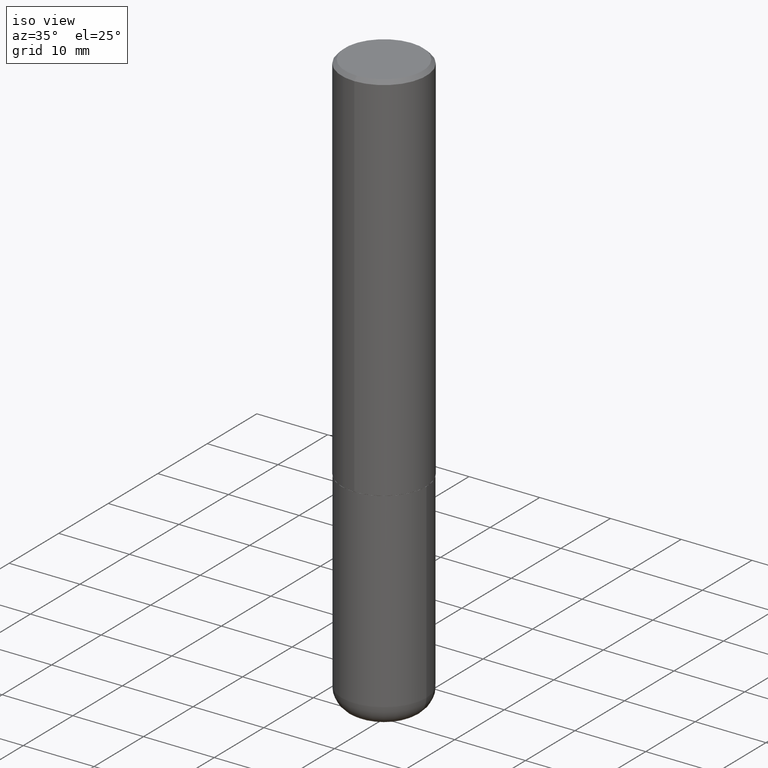
[diagram: clean part render]
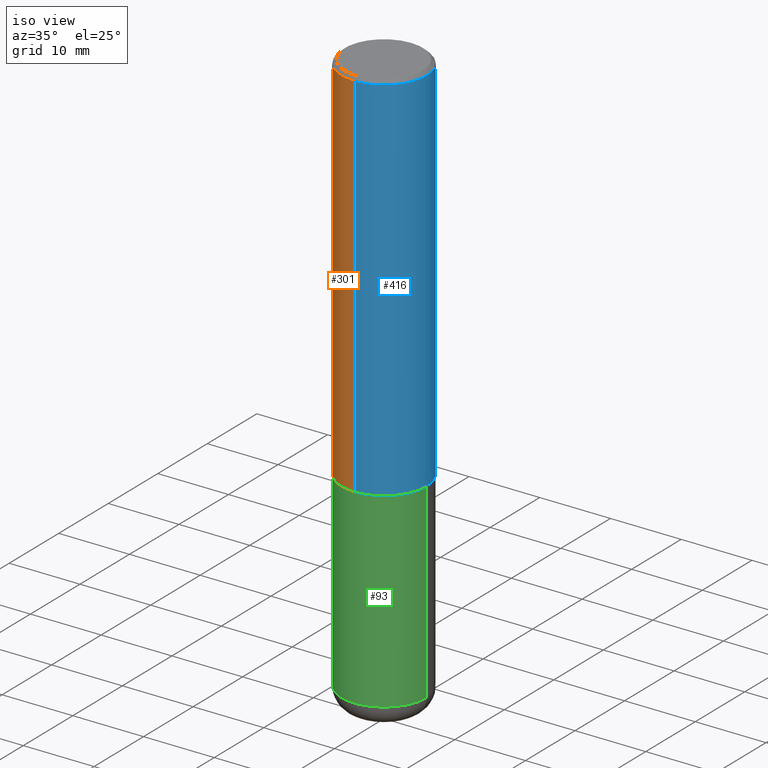
[diagram: same view with three faces highlighted in distinct colors, each labeled with its STEP entity id]
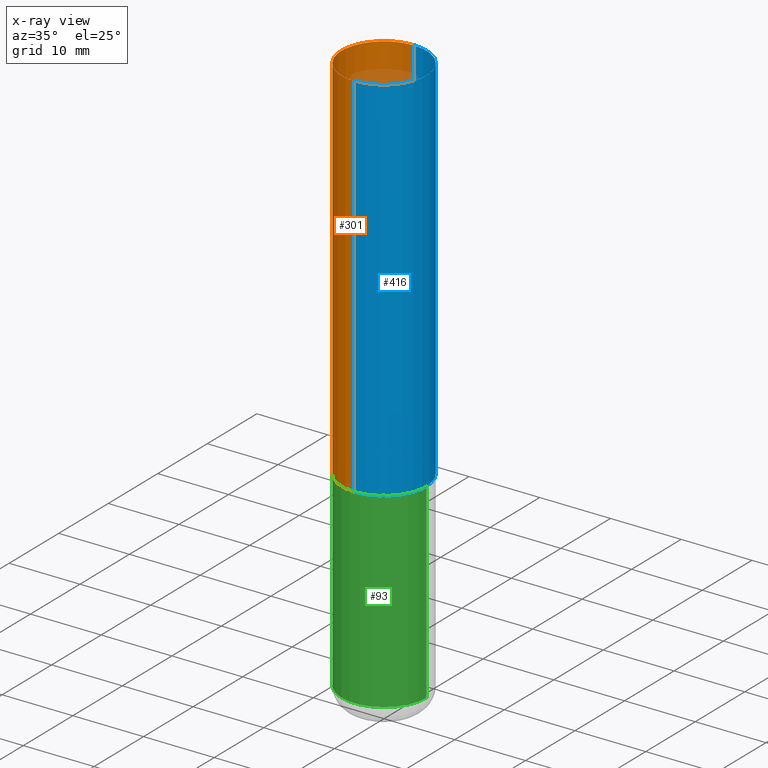
[diagram: x-ray of the same camera — body ghosted, the three highlighted faces saturated]
A machine part, iso view with three faces highlighted in distinct colors.
The next image is the same camera in x-ray (body ghosted, the three faces saturated) — at least one of them is partly hidden behind the body in this view.
Their STEP definitions:

[orange] entity #301 — the highlighted cylindrical surface (partial cylindrical patch) has radius 5.9995 mm, axis along (-0, 0, 1).
#1 = AXIS2_PLACEMENT_3D ( 'NONE', #161, #235, #263 ) ;
#27 = ORIENTED_EDGE ( 'NONE', *, *, #44, .F. ) ;
#33 = CYLINDRICAL_SURFACE ( 'NONE', #310, 0.2362000000000000766 ) ;
#44 = EDGE_CURVE ( 'NONE', #120, #136, #398, .T. ) ;
#68 = VERTEX_POINT ( 'NONE', #402 ) ;
#75 = CARTESIAN_POINT ( 'NONE',  ( 1.678301941865383018E-15, 0.2361999999999929711, -2.085600000000000787 ) ) ;
#98 = VECTOR ( 'NONE', #184, 39.37007874015748143 ) ;
#105 = CARTESIAN_POINT ( 'NONE',  ( 1.678301941865356789E-15, 0.2362000000000000766, -8.245553254066843076E-16 ) ) ;
#120 = VERTEX_POINT ( 'NONE', #75 ) ;
#121 = DIRECTION ( 'NONE',  ( -2.445860723718028373E-29, 3.490920090629483706E-15, 1.000000000000000000 ) ) ;
#134 = ORIENTED_EDGE ( 'NONE', *, *, #366, .T. ) ;
#136 = VERTEX_POINT ( 'NONE', #408 ) ;
#146 = CIRCLE ( 'NONE', #386, 0.2362000000000002431 ) ;
#152 = EDGE_CURVE ( 'NONE', #207, #68, #306, .T. ) ;
#161 = CARTESIAN_POINT ( 'NONE',  ( 4.891721447436068727E-31, -6.981840181258985900E-17, -0.02000000000000005246 ) ) ;
#164 = EDGE_LOOP ( 'NONE', ( #27, #134, #174, #204 ) ) ;
#174 = ORIENTED_EDGE ( 'NONE', *, *, #152, .T. ) ;
#184 = DIRECTION ( 'NONE',  ( -2.445860723718028093E-29, 3.490920090629484100E-15, 1.000000000000000000 ) ) ;
#197 = DIRECTION ( 'NONE',  ( -6.982962677686265922E-15, -1.000000000000000000, 3.490920090629483706E-15 ) ) ;
#201 = CIRCLE ( 'NONE', #1, 0.2361999999999999378 ) ;
#204 = ORIENTED_EDGE ( 'NONE', *, *, #410, .F. ) ;
#207 = VERTEX_POINT ( 'NONE', #342 ) ;
#221 = CARTESIAN_POINT ( 'NONE',  ( 5.101087125386319798E-29, -7.280662941016851690E-15, -2.085599999999999898 ) ) ;
#235 = DIRECTION ( 'NONE',  ( -2.445860723718028373E-29, 3.490920090629483706E-15, 1.000000000000000000 ) ) ;
#239 = DIRECTION ( 'NONE',  ( -2.445860723718028093E-29, 3.490920090629484100E-15, 1.000000000000000000 ) ) ;
#256 = FACE_OUTER_BOUND ( 'NONE', #164, .T. ) ;
#258 = DIRECTION ( 'NONE',  ( -2.445860723718028373E-29, 3.490920090629483706E-15, 1.000000000000000000 ) ) ;
#263 = DIRECTION ( 'NONE',  ( -6.982962677686265922E-15, -1.000000000000000000, 3.487819265831412533E-15 ) ) ;
#291 = VECTOR ( 'NONE', #239, 39.37007874015748143 ) ;
#301 = ADVANCED_FACE ( 'NONE', ( #256 ), #33, .T. ) ;
#303 = CARTESIAN_POINT ( 'NONE',  ( -1.649375784469496525E-15, -0.2362000000000000766, 8.245553254066843076E-16 ) ) ;
#306 = LINE ( 'NONE', #303, #98 ) ;
#310 = AXIS2_PLACEMENT_3D ( 'NONE', #315, #258, #197 ) ;
#312 = DIRECTION ( 'NONE',  ( -6.982962677686265922E-15, -1.000000000000000000, 3.469747663417773452E-15 ) ) ;
#315 = CARTESIAN_POINT ( 'NONE',  ( 0.000000000000000000, 0.000000000000000000, 0.000000000000000000 ) ) ;
#342 = CARTESIAN_POINT ( 'NONE',  ( -1.649375784469446630E-15, -0.2362000000000075151, -2.085599999999999010 ) ) ;
#366 = EDGE_CURVE ( 'NONE', #120, #207, #146, .T. ) ;
#386 = AXIS2_PLACEMENT_3D ( 'NONE', #221, #121, #312 ) ;
#398 = LINE ( 'NONE', #105, #291 ) ;
#402 = CARTESIAN_POINT ( 'NONE',  ( -1.620449627073634487E-15, -0.2361999999999999933, -0.01999999999999922673 ) ) ;
#408 = CARTESIAN_POINT ( 'NONE',  ( 1.649375784469495934E-15, 0.2361999999999998545, -0.02000000000000087472 ) ) ;
#410 = EDGE_CURVE ( 'NONE', #136, #68, #201, .T. ) ;

[blue] entity #416 — the highlighted cylindrical surface (partial cylindrical patch) has radius 5.9995 mm, axis along (-0, 0, 1).
#6 = DIRECTION ( 'NONE',  ( -6.982962677686265922E-15, -1.000000000000000000, 3.490920090629483706E-15 ) ) ;
#32 = EDGE_LOOP ( 'NONE', ( #229, #253, #413, #318 ) ) ;
#44 = EDGE_CURVE ( 'NONE', #120, #136, #398, .T. ) ;
#68 = VERTEX_POINT ( 'NONE', #402 ) ;
#75 = CARTESIAN_POINT ( 'NONE',  ( 1.678301941865383018E-15, 0.2361999999999929711, -2.085600000000000787 ) ) ;
#76 = EDGE_CURVE ( 'NONE', #207, #120, #325, .T. ) ;
#98 = VECTOR ( 'NONE', #184, 39.37007874015748143 ) ;
#105 = CARTESIAN_POINT ( 'NONE',  ( 1.678301941865356789E-15, 0.2362000000000000766, -8.245553254066843076E-16 ) ) ;
#108 = AXIS2_PLACEMENT_3D ( 'NONE', #368, #111, #280 ) ;
#111 = DIRECTION ( 'NONE',  ( -2.445860723718028373E-29, 3.490920090629483706E-15, 1.000000000000000000 ) ) ;
#120 = VERTEX_POINT ( 'NONE', #75 ) ;
#126 = DIRECTION ( 'NONE',  ( -2.445860723718028373E-29, 3.490920090629483706E-15, 1.000000000000000000 ) ) ;
#136 = VERTEX_POINT ( 'NONE', #408 ) ;
#152 = EDGE_CURVE ( 'NONE', #207, #68, #306, .T. ) ;
#184 = DIRECTION ( 'NONE',  ( -2.445860723718028093E-29, 3.490920090629484100E-15, 1.000000000000000000 ) ) ;
#202 = CARTESIAN_POINT ( 'NONE',  ( 0.000000000000000000, 0.000000000000000000, 0.000000000000000000 ) ) ;
#207 = VERTEX_POINT ( 'NONE', #342 ) ;
#229 = ORIENTED_EDGE ( 'NONE', *, *, #76, .T. ) ;
#238 = AXIS2_PLACEMENT_3D ( 'NONE', #202, #396, #6 ) ;
#239 = DIRECTION ( 'NONE',  ( -2.445860723718028093E-29, 3.490920090629484100E-15, 1.000000000000000000 ) ) ;
#253 = ORIENTED_EDGE ( 'NONE', *, *, #44, .T. ) ;
#279 = EDGE_CURVE ( 'NONE', #68, #136, #284, .T. ) ;
#280 = DIRECTION ( 'NONE',  ( -6.982962677686265922E-15, -1.000000000000000000, 3.469747663417773452E-15 ) ) ;
#284 = CIRCLE ( 'NONE', #341, 0.2361999999999999378 ) ;
#288 = CARTESIAN_POINT ( 'NONE',  ( 4.891721447436068727E-31, -6.981840181258985900E-17, -0.02000000000000005246 ) ) ;
#291 = VECTOR ( 'NONE', #239, 39.37007874015748143 ) ;
#303 = CARTESIAN_POINT ( 'NONE',  ( -1.649375784469496525E-15, -0.2362000000000000766, 8.245553254066843076E-16 ) ) ;
#306 = LINE ( 'NONE', #303, #98 ) ;
#318 = ORIENTED_EDGE ( 'NONE', *, *, #152, .F. ) ;
#325 = CIRCLE ( 'NONE', #108, 0.2362000000000002431 ) ;
#326 = FACE_OUTER_BOUND ( 'NONE', #32, .T. ) ;
#330 = CYLINDRICAL_SURFACE ( 'NONE', #238, 0.2362000000000000766 ) ;
#341 = AXIS2_PLACEMENT_3D ( 'NONE', #288, #126, #378 ) ;
#342 = CARTESIAN_POINT ( 'NONE',  ( -1.649375784469446630E-15, -0.2362000000000075151, -2.085599999999999010 ) ) ;
#368 = CARTESIAN_POINT ( 'NONE',  ( 5.101087125386319798E-29, -7.280662941016851690E-15, -2.085599999999999898 ) ) ;
#378 = DIRECTION ( 'NONE',  ( -6.982962677686265922E-15, -1.000000000000000000, 3.487819265831412533E-15 ) ) ;
#396 = DIRECTION ( 'NONE',  ( -2.445860723718028373E-29, 3.490920090629483706E-15, 1.000000000000000000 ) ) ;
#398 = LINE ( 'NONE', #105, #291 ) ;
#402 = CARTESIAN_POINT ( 'NONE',  ( -1.620449627073634487E-15, -0.2361999999999999933, -0.01999999999999922673 ) ) ;
#408 = CARTESIAN_POINT ( 'NONE',  ( 1.649375784469495934E-15, 0.2361999999999998545, -0.02000000000000087472 ) ) ;
#413 = ORIENTED_EDGE ( 'NONE', *, *, #279, .F. ) ;
#416 = ADVANCED_FACE ( 'NONE', ( #326 ), #330, .T. ) ;

[green] entity #93 — the highlighted cylindrical surface (partial cylindrical patch) has radius 5.9995 mm, axis along (-0, 0, 1).
#15 = AXIS2_PLACEMENT_3D ( 'NONE', #74, #127, #210 ) ;
#20 = CARTESIAN_POINT ( 'NONE',  ( 0.2361999999999999933, -1.649375784469496131E-15, 1.151752954443000088E-29 ) ) ;
#34 = CARTESIAN_POINT ( 'NONE',  ( -0.2361999999999999933, -7.462745351359882680E-15, -2.086600000000000232 ) ) ;
#38 = VERTEX_POINT ( 'NONE', #336 ) ;
#42 = VECTOR ( 'NONE', #275, 39.37007874015748143 ) ;
#52 = DIRECTION ( 'NONE',  ( -2.445468806185136597E-29, 3.491481338843145583E-15, 1.000000000000000000 ) ) ;
#54 = CARTESIAN_POINT ( 'NONE',  ( -0.2361999999999998545, -9.318467682955017493E-15, -3.149600000000000399 ) ) ;
#56 = CARTESIAN_POINT ( 'NONE',  ( 0.2361999999999999933, -8.934700746099602364E-15, -2.086600000000000232 ) ) ;
#58 = EDGE_CURVE ( 'NONE', #289, #38, #376, .T. ) ;
#63 = VERTEX_POINT ( 'NONE', #34 ) ;
#74 = CARTESIAN_POINT ( 'NONE',  ( 7.702248551960706711E-29, -1.099676962482037231E-14, -3.149600000000000399 ) ) ;
#78 = CIRCLE ( 'NONE', #371, 0.2361999999999999933 ) ;
#88 = DIRECTION ( 'NONE',  ( 1.000000000000000000, -6.982962677686265133E-15, 0.000000000000000000 ) ) ;
#93 = ADVANCED_FACE ( 'NONE', ( #183 ), #340, .T. ) ;
#95 = ORIENTED_EDGE ( 'NONE', *, *, #145, .T. ) ;
#110 = EDGE_CURVE ( 'NONE', #289, #63, #143, .T. ) ;
#125 = AXIS2_PLACEMENT_3D ( 'NONE', #345, #52, #242 ) ;
#127 = DIRECTION ( 'NONE',  ( -2.445468806185136597E-29, 3.491481338843145583E-15, 1.000000000000000000 ) ) ;
#143 = LINE ( 'NONE', #337, #42 ) ;
#145 = EDGE_CURVE ( 'NONE', #38, #264, #178, .T. ) ;
#153 = CARTESIAN_POINT ( 'NONE',  ( 5.102715210985906276E-29, -7.285324961630107416E-15, -2.086600000000000232 ) ) ;
#178 = LINE ( 'NONE', #20, #400 ) ;
#183 = FACE_OUTER_BOUND ( 'NONE', #399, .T. ) ;
#210 = DIRECTION ( 'NONE',  ( 1.000000000000000000, -6.982962677686265133E-15, 0.000000000000000000 ) ) ;
#236 = ORIENTED_EDGE ( 'NONE', *, *, #58, .T. ) ;
#242 = DIRECTION ( 'NONE',  ( 1.000000000000000000, -6.982962677686266711E-15, 4.876176775795936353E-29 ) ) ;
#264 = VERTEX_POINT ( 'NONE', #56 ) ;
#268 = ORIENTED_EDGE ( 'NONE', *, *, #110, .F. ) ;
#275 = DIRECTION ( 'NONE',  ( -2.445468806185136877E-29, 3.491481338843145188E-15, 1.000000000000000000 ) ) ;
#286 = EDGE_CURVE ( 'NONE', #63, #264, #78, .T. ) ;
#289 = VERTEX_POINT ( 'NONE', #54 ) ;
#336 = CARTESIAN_POINT ( 'NONE',  ( 0.2361999999999998545, -1.264614540928986883E-14, -3.149600000000000399 ) ) ;
#337 = CARTESIAN_POINT ( 'NONE',  ( -0.2361999999999999933, 1.678301941865356591E-15, -1.161852468318208757E-29 ) ) ;
#340 = CYLINDRICAL_SURFACE ( 'NONE', #125, 0.2361999999999999933 ) ;
#345 = CARTESIAN_POINT ( 'NONE',  ( 0.000000000000000000, 0.000000000000000000, 0.000000000000000000 ) ) ;
#371 = AXIS2_PLACEMENT_3D ( 'NONE', #153, #384, #88 ) ;
#375 = DIRECTION ( 'NONE',  ( -2.445468806185136877E-29, 3.491481338843145188E-15, 1.000000000000000000 ) ) ;
#376 = CIRCLE ( 'NONE', #15, 0.2361999999999999933 ) ;
#381 = ORIENTED_EDGE ( 'NONE', *, *, #286, .F. ) ;
#384 = DIRECTION ( 'NONE',  ( -2.445468806185136597E-29, 3.491481338843145583E-15, 1.000000000000000000 ) ) ;
#399 = EDGE_LOOP ( 'NONE', ( #268, #236, #95, #381 ) ) ;
#400 = VECTOR ( 'NONE', #375, 39.37007874015748143 ) ;